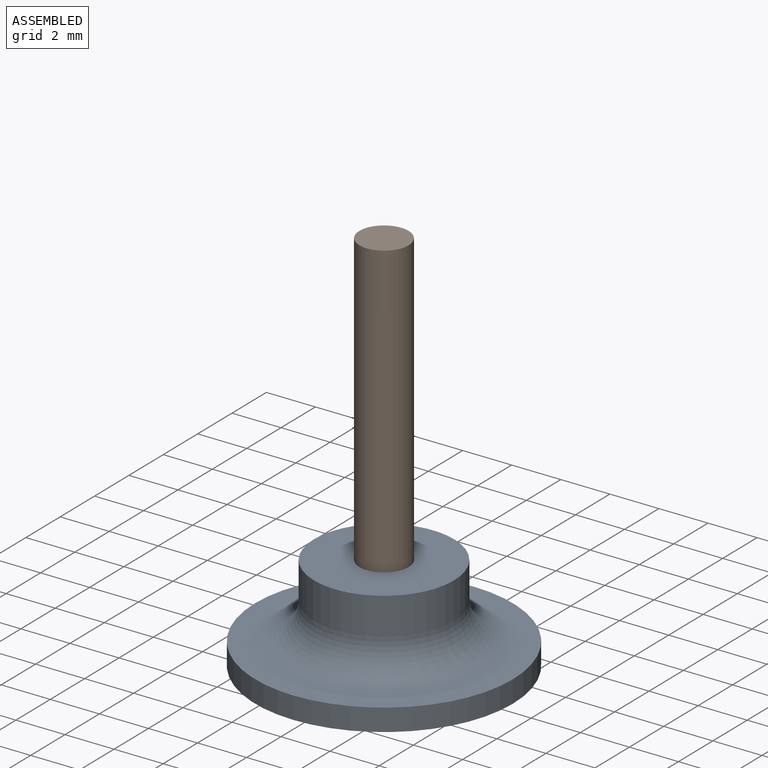
[diagram: assembled view]
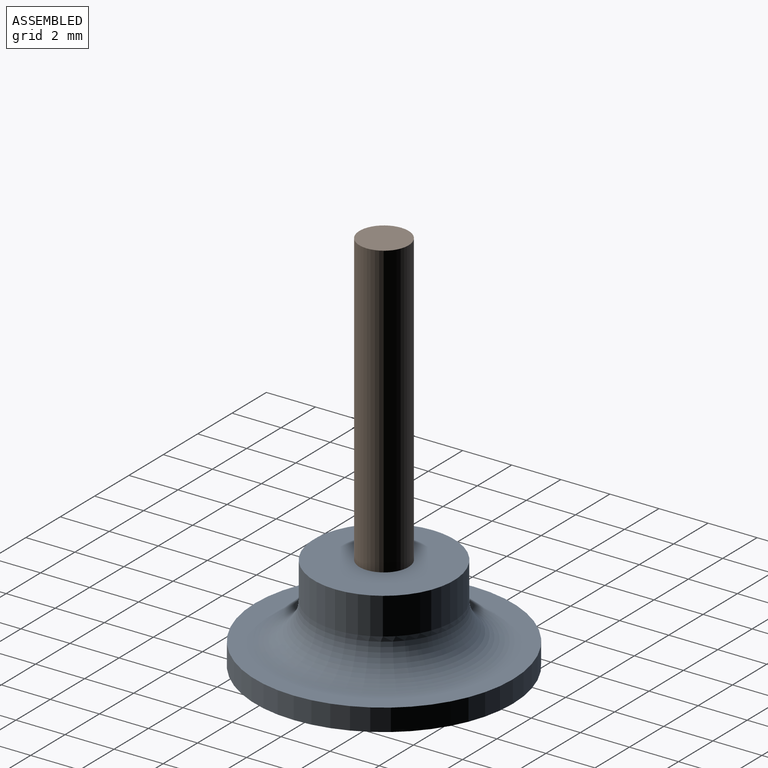
[diagram: assembled view, second angle]
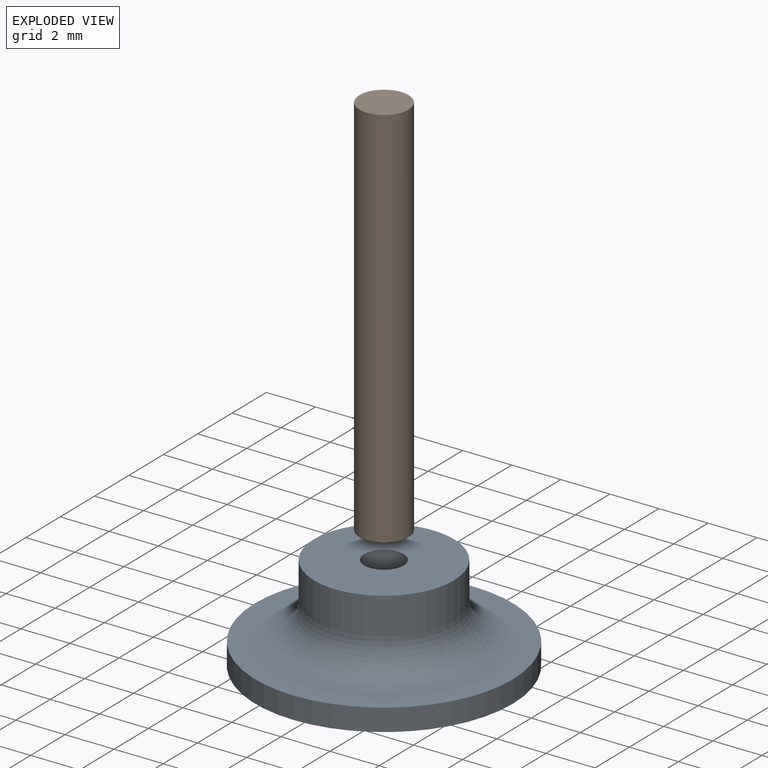
[diagram: exploded view]
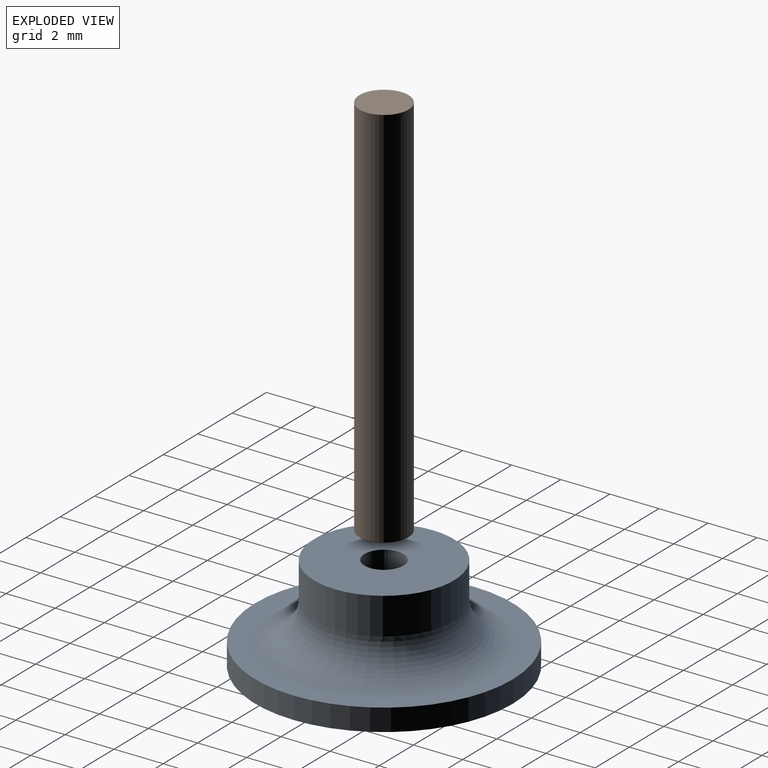
[diagram: exploded view, second angle]
ASSEMBLY  parts=2 mates=2
PART A: 7 faces, bbox 11.7x11.7x3.9 mm
  f0: cylinder r=5.25mm len=10.5mm, axis (0,0,-1), area 29.7mm2, adj f1,f2
  f1: plane 10.5x10.5mm, normal (0,0,1), area 27.1mm2, adj f0,f5
  f2: plane 10.5x10.5mm, normal (0,0,-1), area 84.6mm2, adj f0,f6
  f3: cylinder r=2.85mm len=5.7mm, axis (0,0,-1), area 26.9mm2, adj f4,f5
  f4: plane 5.7x5.7mm, normal (0,0,1), area 23.5mm2, adj f3,f6
  f5: torus R=4.35mm, axis (0,0,1), area 50.3mm2, adj f1,f3
  f6: cylinder r=0.8mm len=3.9mm, axis (0,0,-1), area 19.6mm2, adj f2,f4
PART B: 3 faces, bbox 2x2x15.8 mm
  f0: cylinder r=1mm len=15.75mm, axis (0,0,-1), area 99mm2, adj f1,f2
  f1: plane 2x2mm, normal (0,0,1), area 3.1mm2, adj f0
  f2: plane 2x2mm, normal (0,0,-1), area 3.1mm2, adj f0
PLACE A at identity
PLACE B at identity
MATE cylindrical B.f0 <-> A.f0  axis (0,0,-1) through (0,0,7.88)mm
MATE planar B.f0 <-> A.f0  axis (0,0,-1) through (0,0,0)mm
